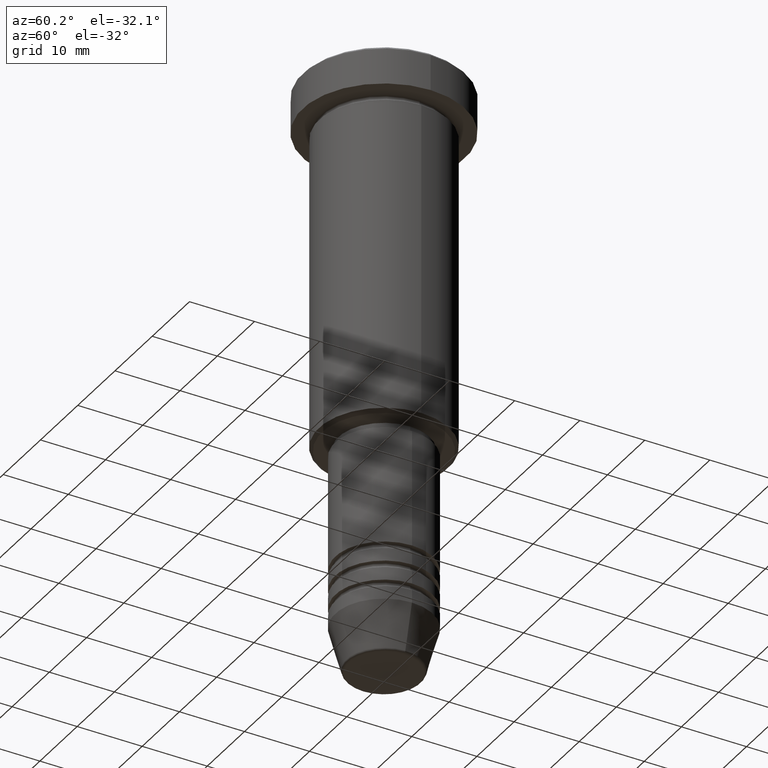
[diagram: clean part render]
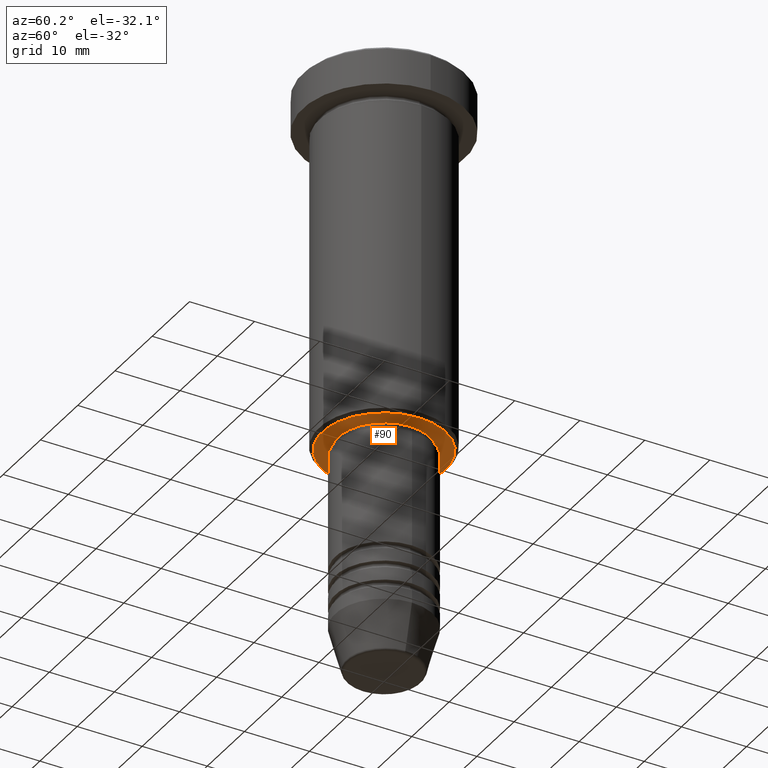
[diagram: same view with one face highlighted and labeled with its STEP entity id]
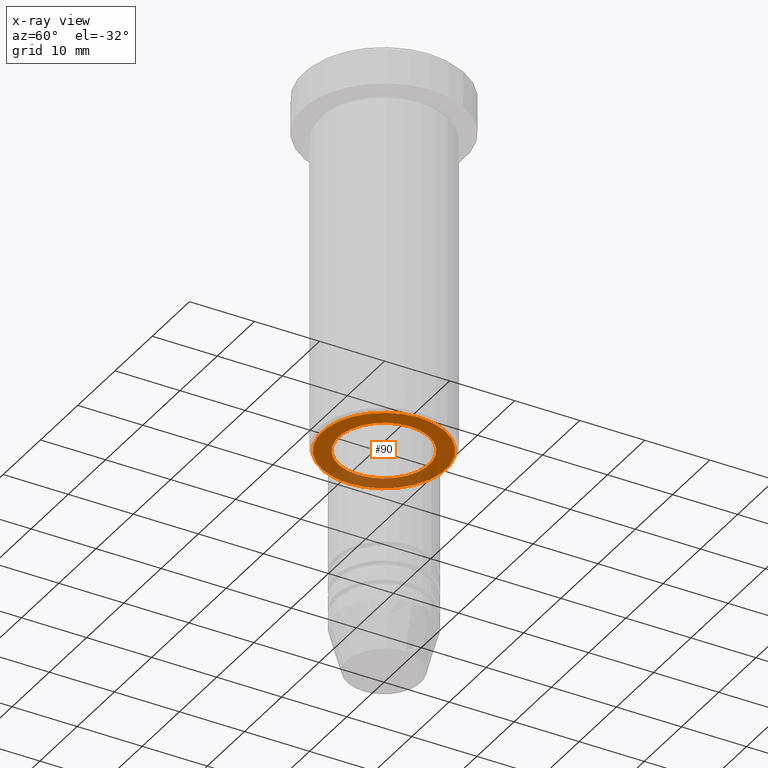
[diagram: x-ray of the same camera — body ghosted, the highlighted face saturated]
A machine part, auxiliary view. The second image highlights one B-rep face of the part: STEP entity #90.
The next image is the same camera in x-ray: the body ghosted, the highlighted face saturated — about 28% of this face is hidden behind the body in this view.
In plain terms, the highlighted planar face has unit normal (0, 0, -1).
Its self-contained STEP definition (entity closure, byte-faithful):
#30 = VERTEX_POINT ( 'NONE', #608 ) ;
#41 = DIRECTION ( 'NONE',  ( 1.000000000000000000, 0.000000000000000000, 0.000000000000000000 ) ) ;
#69 = ORIENTED_EDGE ( 'NONE', *, *, #1174, .T. ) ;
#79 = CIRCLE ( 'NONE', #635, 9.500000000000008882 ) ;
#90 = ADVANCED_FACE ( 'NONE', ( #1035, #1132 ), #289, .T. ) ;
#96 = EDGE_CURVE ( 'NONE', #30, #1064, #887, .T. ) ;
#99 = AXIS2_PLACEMENT_3D ( 'NONE', #497, #124, #41 ) ;
#116 = CARTESIAN_POINT ( 'NONE',  ( -9.500000000000008882, 1.194030629168669864E-15, -56.00000000000000711 ) ) ;
#122 = DIRECTION ( 'NONE',  ( 1.000000000000000000, 0.000000000000000000, 0.000000000000000000 ) ) ;
#124 = DIRECTION ( 'NONE',  ( -0.000000000000000000, -0.000000000000000000, 1.000000000000000000 ) ) ;
#146 = ORIENTED_EDGE ( 'NONE', *, *, #886, .T. ) ;
#252 = DIRECTION ( 'NONE',  ( -1.000000000000000000, 0.000000000000000000, 0.000000000000000000 ) ) ;
#289 = PLANE ( 'NONE',  #730 ) ;
#290 = CARTESIAN_POINT ( 'NONE',  ( 0.000000000000000000, 0.000000000000000000, -56.00000000000000711 ) ) ;
#471 = DIRECTION ( 'NONE',  ( 0.000000000000000000, 0.000000000000000000, -1.000000000000000000 ) ) ;
#485 = VERTEX_POINT ( 'NONE', #804 ) ;
#497 = CARTESIAN_POINT ( 'NONE',  ( 0.000000000000000000, 0.000000000000000000, -56.00000000000000711 ) ) ;
#517 = CARTESIAN_POINT ( 'NONE',  ( 6.999999999999999112, 0.000000000000000000, -56.00000000000000711 ) ) ;
#526 = DIRECTION ( 'NONE',  ( 0.000000000000000000, 0.000000000000000000, -1.000000000000000000 ) ) ;
#567 = DIRECTION ( 'NONE',  ( -1.000000000000000000, 0.000000000000000000, -0.000000000000000000 ) ) ;
#575 = DIRECTION ( 'NONE',  ( -1.000000000000000000, 0.000000000000000000, 0.000000000000000000 ) ) ;
#602 = VERTEX_POINT ( 'NONE', #116 ) ;
#608 = CARTESIAN_POINT ( 'NONE',  ( -6.999999999999999112, 8.572527594031472204E-16, -56.00000000000000711 ) ) ;
#635 = AXIS2_PLACEMENT_3D ( 'NONE', #290, #471, #575 ) ;
#678 = DIRECTION ( 'NONE',  ( -0.000000000000000000, -0.000000000000000000, 1.000000000000000000 ) ) ;
#696 = CARTESIAN_POINT ( 'NONE',  ( 0.000000000000000000, 0.000000000000000000, -56.00000000000000711 ) ) ;
#730 = AXIS2_PLACEMENT_3D ( 'NONE', #767, #951, #567 ) ;
#767 = CARTESIAN_POINT ( 'NONE',  ( 0.000000000000000000, 10.00000000000000000, -56.00000000000000711 ) ) ;
#783 = ORIENTED_EDGE ( 'NONE', *, *, #96, .T. ) ;
#786 = ORIENTED_EDGE ( 'NONE', *, *, #920, .T. ) ;
#804 = CARTESIAN_POINT ( 'NONE',  ( 9.500000000000008882, 0.000000000000000000, -56.00000000000000711 ) ) ;
#839 = AXIS2_PLACEMENT_3D ( 'NONE', #1118, #678, #122 ) ;
#869 = AXIS2_PLACEMENT_3D ( 'NONE', #696, #526, #252 ) ;
#886 = EDGE_CURVE ( 'NONE', #602, #485, #79, .T. ) ;
#887 = CIRCLE ( 'NONE', #839, 6.999999999999999112 ) ;
#920 = EDGE_CURVE ( 'NONE', #1064, #30, #1181, .T. ) ;
#951 = DIRECTION ( 'NONE',  ( 0.000000000000000000, 0.000000000000000000, -1.000000000000000000 ) ) ;
#983 = EDGE_LOOP ( 'NONE', ( #786, #783 ) ) ;
#1035 = FACE_OUTER_BOUND ( 'NONE', #1122, .T. ) ;
#1064 = VERTEX_POINT ( 'NONE', #517 ) ;
#1118 = CARTESIAN_POINT ( 'NONE',  ( 0.000000000000000000, 0.000000000000000000, -56.00000000000000711 ) ) ;
#1122 = EDGE_LOOP ( 'NONE', ( #69, #146 ) ) ;
#1129 = CIRCLE ( 'NONE', #869, 9.500000000000008882 ) ;
#1132 = FACE_BOUND ( 'NONE', #983, .T. ) ;
#1174 = EDGE_CURVE ( 'NONE', #485, #602, #1129, .T. ) ;
#1181 = CIRCLE ( 'NONE', #99, 6.999999999999999112 ) ;